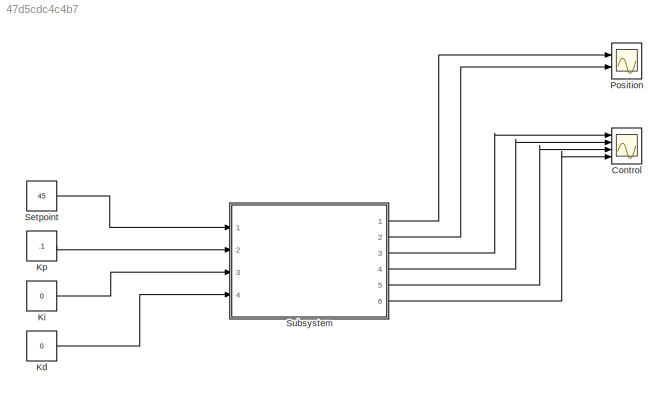
MODEL slx_47d5cdc4c4b7
KIND model
CONFIG AbsTol = auto
CONFIG FixedStep = AUTO
CONFIG MaxStep = auto
CONFIG MinStep = auto
CONFIG RelTol = 1e-3
CONFIG SampleTimeConstraint = Unconstrained
CONFIG Solver = FixedStepDiscrete
CONFIG SolverMode = SingleTasking
CONFIG SolverName = FixedStepDiscrete
CONFIG StartTime = 0.0
CONFIG StopTime = inf
BLOCK [Scope] Control
  NumInputPorts = 4
  Ports = [4]
  ScopeSpecificationString = Simulink.scopes.TimeScopeBlockCfg('CurrentConfiguration', extmgr.ConfigurationSet(extmgr.Configuration('Core','General UI',true),extmgr.Configuration('Core','Source UI',true),extmgr.Configuration('Sources','WiredSimulink',true,'DataLoggingMaxPoints','20000','SampleTime','0.002','DataLogging',true,'DataLoggingSaveFormat','StructureWithTime'),extmgr.Configuration('Visuals','Time Domain',true,'Serial...<+1764ch>
BLOCK [Constant] Kd
  OutMax = 0.01
  OutMin = 0
  Value = 0
  VectorParams1D = off
BLOCK [Constant] Ki
  OutMax = 5
  OutMin = 0
  Value = 0
  VectorParams1D = off
BLOCK [Constant] Kp
  OutMax = 1
  OutMin = 0
  Value = .1
  VectorParams1D = off
BLOCK [Scope] Position
  NumInputPorts = 2
  Ports = [2]
  ScopeSpecificationString = Simulink.scopes.TimeScopeBlockCfg('CurrentConfiguration', extmgr.ConfigurationSet(extmgr.Configuration('Core','General UI',true),extmgr.Configuration('Core','Source UI',true),extmgr.Configuration('Sources','WiredSimulink',true,'DataLoggingMaxPoints','20000','SampleTime','0.002','DataLogging',true,'DataLoggingSaveFormat','StructureWithTime','DataLoggingVariableName','ScopeData1'),extmgr.Configurati...<+1770ch>
BLOCK [Constant] Setpoint
  OutMax = 60
  OutMin = -60
  Value = 45
  VectorParams1D = off
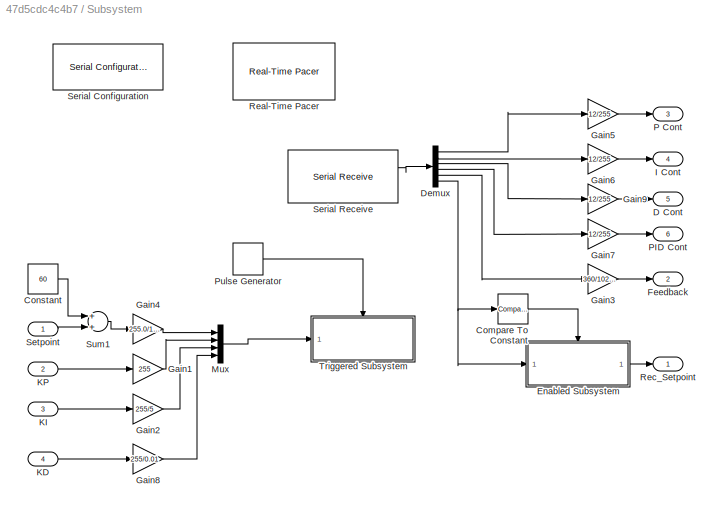
BLOCK [SubSystem] Subsystem
  Ports = [4, 6]
  RequestExecContextInheritance = off
  Variant = off
BLOCK [Reference] Subsystem/Compare To Constant  REF=simulink/Logic and Bit
Operations/Compare
To Constant
  Ports = [1, 1]
  SourceBlock = simulink/Logic and Bit\nOperations/Compare\nTo Constant
  SourceType = Compare To Constant
BLOCK [Constant] Subsystem/Constant
  Value = 60
BLOCK [Outport] Subsystem/D Cont
  IconDisplay = Port number
  Port = 5
BLOCK [Demux] Subsystem/Demux
  DisplayOption = bar
  Outputs = 6
  Ports = [1, 6]
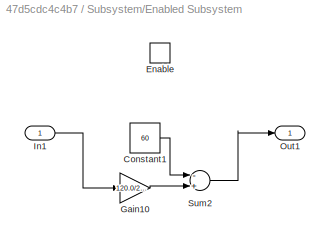
BLOCK [SubSystem] Subsystem/Enabled Subsystem
  Ports = [1, 1, 1]
  RequestExecContextInheritance = off
  TreatAsAtomicUnit = on
  Variant = off
BLOCK [Constant] Subsystem/Enabled Subsystem/Constant1
  Value = 60
BLOCK [EnablePort] Subsystem/Enabled Subsystem/Enable
  Ports = []
BLOCK [Gain] Subsystem/Enabled Subsystem/Gain10
  Gain = 120.0/255.0
  OutDataTypeStr = double
  ParamDataTypeStr = Inherit: Inherit via internal rule
BLOCK [Inport] Subsystem/Enabled Subsystem/In1
  IconDisplay = Port number
BLOCK [Outport] Subsystem/Enabled Subsystem/Out1
  IconDisplay = Port number
BLOCK [Sum] Subsystem/Enabled Subsystem/Sum2
  InputSameDT = off
  Inputs = -+
  OutDataTypeStr = double
  Ports = [2, 1]
BLOCK [Outport] Subsystem/Feedback
  IconDisplay = Port number
  Port = 2
BLOCK [Gain] Subsystem/Gain1
  Gain = 255
  OutDataTypeStr = uint8
  ParamDataTypeStr = Inherit: Inherit via internal rule
  SaturateOnIntegerOverflow = off
BLOCK [Gain] Subsystem/Gain2
  Gain = 255/5
  OutDataTypeStr = uint8
  ParamDataTypeStr = Inherit: Inherit via internal rule
  SaturateOnIntegerOverflow = off
BLOCK [Gain] Subsystem/Gain3
  Gain = 360/1024*(23/74)
  OutDataTypeStr = Inherit: Inherit via internal rule
  ParamDataTypeStr = Inherit: Inherit via internal rule
BLOCK [Gain] Subsystem/Gain4
  Gain = 255.0/120.0
  OutDataTypeStr = uint8
  ParamDataTypeStr = Inherit: Inherit via internal rule
BLOCK [Gain] Subsystem/Gain5
  Gain = 12/255
  OutDataTypeStr = Inherit: Inherit via internal rule
  ParamDataTypeStr = Inherit: Inherit via internal rule
  SaturateOnIntegerOverflow = off
BLOCK [Gain] Subsystem/Gain6
  Gain = 12/255
  OutDataTypeStr = Inherit: Inherit via internal rule
  ParamDataTypeStr = Inherit: Inherit via internal rule
  SaturateOnIntegerOverflow = off
BLOCK [Gain] Subsystem/Gain7
  Gain = 12/255
  OutDataTypeStr = Inherit: Inherit via internal rule
  ParamDataTypeStr = Inherit: Inherit via internal rule
  SaturateOnIntegerOverflow = off
BLOCK [Gain] Subsystem/Gain8
  Gain = 255/0.01
  OutDataTypeStr = uint8
  ParamDataTypeStr = Inherit: Inherit via internal rule
  SaturateOnIntegerOverflow = off
BLOCK [Gain] Subsystem/Gain9
  Gain = 12/255
  OutDataTypeStr = Inherit: Inherit via internal rule
  ParamDataTypeStr = Inherit: Inherit via internal rule
  SaturateOnIntegerOverflow = off
BLOCK [Outport] Subsystem/I Cont
  IconDisplay = Port number
  Port = 4
BLOCK [Inport] Subsystem/KD
  IconDisplay = Port number
  Port = 4
BLOCK [Inport] Subsystem/KI
  IconDisplay = Port number
  Port = 3
BLOCK [Inport] Subsystem/KP
  IconDisplay = Port number
  Port = 2
BLOCK [Mux] Subsystem/Mux
  DisplayOption = bar
  Ports = [4, 1]
BLOCK [Outport] Subsystem/P Cont
  IconDisplay = Port number
  Port = 3
BLOCK [Outport] Subsystem/PID Cont
  IconDisplay = Port number
  Port = 6
BLOCK [DiscretePulseGenerator] Subsystem/Pulse Generator
  Period = 0.25
  PhaseDelay = 2
  Ports = [0, 1]
  PulseType = Time based
  PulseWidth = 50
BLOCK [Reference] Subsystem/Real-Time Pacer  REF=realtime_pacer_lib/Real-Time Pacer
  Ports = []
  SourceBlock = realtime_pacer_lib/Real-Time Pacer
  SourceType = RealTime_Pacer
BLOCK [Outport] Subsystem/Rec_Setpoint
  IconDisplay = Port number
BLOCK [Reference] Subsystem/Serial Configuration  REF=instrumentlib/Serial Configuration
  Ports = []
  Priority = -200000
  SourceBlock = instrumentlib/Serial Configuration
  SourceType = Serial Configuration
BLOCK [Reference] Subsystem/Serial Receive  REF=instrumentlib/Serial Receive
  Ports = [0, 2]
  SourceBlock = instrumentlib/Serial Receive
  SourceType = Serial Receive
BLOCK [Inport] Subsystem/Setpoint
  IconDisplay = Port number
BLOCK [Sum] Subsystem/Sum1
  InputSameDT = off
  OutDataTypeStr = int16
  Ports = [2, 1]
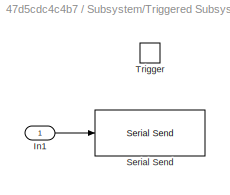
BLOCK [SubSystem] Subsystem/Triggered Subsystem
  Ports = [1, 0, 0, 1]
  RequestExecContextInheritance = off
  TreatAsAtomicUnit = on
  Variant = off
BLOCK [Inport] Subsystem/Triggered Subsystem/In1
  IconDisplay = Port number
BLOCK [Reference] Subsystem/Triggered Subsystem/Serial Send  REF=instrumentlib/Serial Send
  Ports = [1]
  SourceBlock = instrumentlib/Serial Send
  SourceType = Serial Send
BLOCK [TriggerPort] Subsystem/Triggered Subsystem/Trigger
  Ports = []
  StatesWhenEnabling = held
  TriggerType = either
  VariantControl = Variant
LINE Kd:1 -> Subsystem:4
LINE Ki:1 -> Subsystem:3
LINE Kp:1 -> Subsystem:2
LINE Setpoint:1 -> Subsystem:1
LINE Subsystem/Compare To Constant:1 -> Subsystem/Enabled Subsystem:enable
LINE Subsystem/Constant:1 -> Subsystem/Sum1:1
LINE Subsystem/Demux:1 -> Subsystem/Gain5:1
LINE Subsystem/Demux:2 -> Subsystem/Gain6:1
LINE Subsystem/Demux:3 -> Subsystem/Gain9:1
LINE Subsystem/Demux:4 -> Subsystem/Gain7:1
LINE Subsystem/Demux:5 -> Subsystem/Gain3:1
NET Subsystem/Demux:6 -> Subsystem/Compare To Constant:1, Subsystem/Enabled Subsystem:1
LINE Subsystem/Enabled Subsystem/Constant1:1 -> Subsystem/Enabled Subsystem/Sum2:1
LINE Subsystem/Enabled Subsystem/Gain10:1 -> Subsystem/Enabled Subsystem/Sum2:2
LINE Subsystem/Enabled Subsystem/In1:1 -> Subsystem/Enabled Subsystem/Gain10:1
LINE Subsystem/Enabled Subsystem/Sum2:1 -> Subsystem/Enabled Subsystem/Out1:1
LINE Subsystem/Enabled Subsystem:1 -> Subsystem/Rec_Setpoint:1
LINE Subsystem/Gain1:1 -> Subsystem/Mux:2
LINE Subsystem/Gain2:1 -> Subsystem/Mux:3
LINE Subsystem/Gain3:1 -> Subsystem/Feedback:1
LINE Subsystem/Gain4:1 -> Subsystem/Mux:1
LINE Subsystem/Gain5:1 -> Subsystem/P Cont:1
LINE Subsystem/Gain6:1 -> Subsystem/I Cont:1
LINE Subsystem/Gain7:1 -> Subsystem/PID Cont:1
LINE Subsystem/Gain8:1 -> Subsystem/Mux:4
LINE Subsystem/Gain9:1 -> Subsystem/D Cont:1
LINE Subsystem/KD:1 -> Subsystem/Gain8:1
LINE Subsystem/KI:1 -> Subsystem/Gain2:1
LINE Subsystem/KP:1 -> Subsystem/Gain1:1
LINE Subsystem/Mux:1 -> Subsystem/Triggered Subsystem:1
LINE Subsystem/Pulse Generator:1 -> Subsystem/Triggered Subsystem:trigger
LINE Subsystem/Serial Receive:1 -> Subsystem/Demux:1
LINE Subsystem/Setpoint:1 -> Subsystem/Sum1:2
LINE Subsystem/Sum1:1 -> Subsystem/Gain4:1
LINE Subsystem/Triggered Subsystem/In1:1 -> Subsystem/Triggered Subsystem/Serial Send:1
LINE Subsystem:1 -> Position:1
LINE Subsystem:2 -> Position:2
LINE Subsystem:3 -> Control:1
LINE Subsystem:4 -> Control:2
LINE Subsystem:5 -> Control:3
LINE Subsystem:6 -> Control:4
note: NET lines group one-source signal fan-out (src -> all destinations, sorted); 1:1 wires keep LINE
